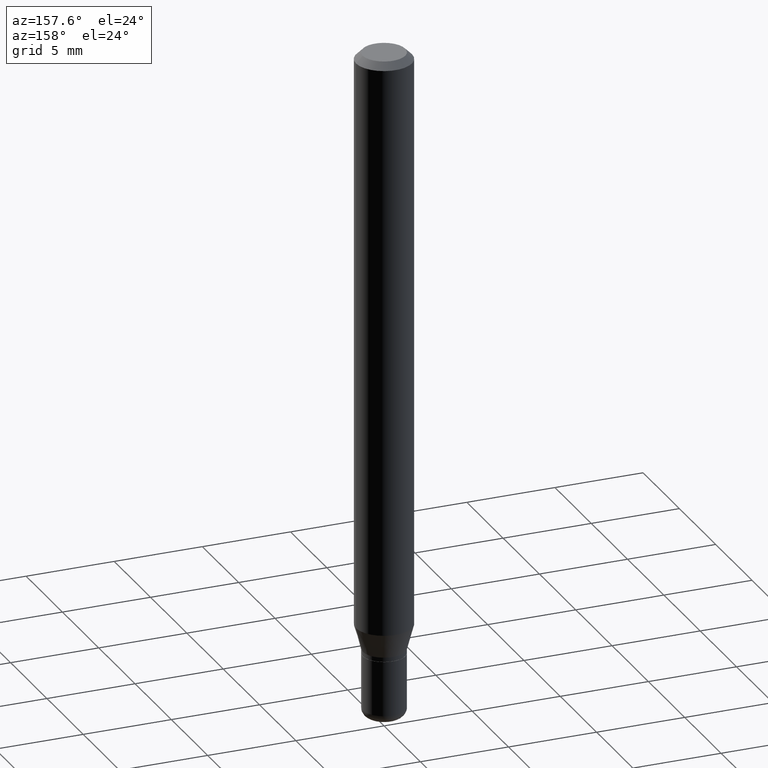
[diagram: clean part render]
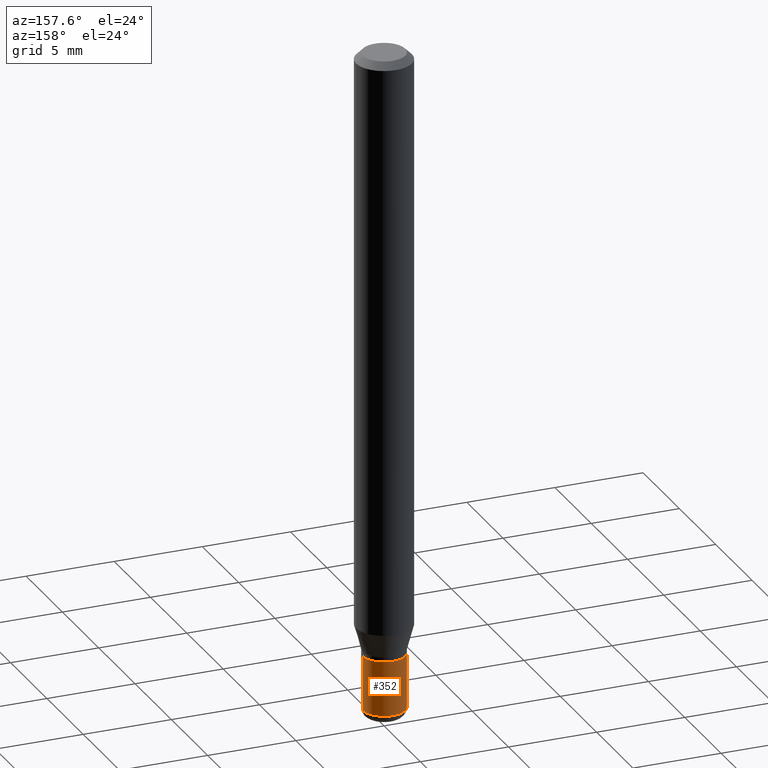
[diagram: same view with one face highlighted and labeled with its STEP entity id]
A machine part, auxiliary view. The second image highlights one B-rep face of the part: STEP entity #352.
In plain terms, the highlighted cylindrical surface (edge-blend (fillet) strip) has radius 1.2065 mm, axis along (-0, 0, 1).
Its self-contained STEP definition (entity closure, byte-faithful):
#44 = DIRECTION ( 'NONE',  ( -2.445468806185136877E-29, 3.491481338843145188E-15, 1.000000000000000000 ) ) ;
#53 = DIRECTION ( 'NONE',  ( -2.445468806185136877E-29, 3.491481338843145188E-15, 1.000000000000000000 ) ) ;
#67 = VERTEX_POINT ( 'NONE', #376 ) ;
#79 = DIRECTION ( 'NONE',  ( 1.000000000000000000, -6.982962677686266711E-15, 4.876176775795934672E-29 ) ) ;
#82 = CARTESIAN_POINT ( 'NONE',  ( 0.04749999999999999362, -5.071376644669668238E-15, -1.357500000000000151 ) ) ;
#94 = VERTEX_POINT ( 'NONE', #302 ) ;
#99 = DIRECTION ( 'NONE',  ( -2.445468806185136597E-29, 3.491481338843145583E-15, 1.000000000000000000 ) ) ;
#113 = LINE ( 'NONE', #228, #246 ) ;
#119 = CYLINDRICAL_SURFACE ( 'NONE', #182, 0.04750000000000000749 ) ;
#130 = EDGE_CURVE ( 'NONE', #366, #298, #408, .T. ) ;
#154 = AXIS2_PLACEMENT_3D ( 'NONE', #323, #404, #364 ) ;
#155 = DIRECTION ( 'NONE',  ( -2.445468806185136597E-29, 3.491481338843145583E-15, 1.000000000000000000 ) ) ;
#180 = CIRCLE ( 'NONE', #154, 0.04750000000000002137 ) ;
#182 = AXIS2_PLACEMENT_3D ( 'NONE', #350, #155, #79 ) ;
#200 = CIRCLE ( 'NONE', #335, 0.04749999999999999362 ) ;
#207 = DIRECTION ( 'NONE',  ( 1.000000000000000000, -6.982962677686261977E-15, 0.000000000000000000 ) ) ;
#227 = EDGE_CURVE ( 'NONE', #366, #94, #180, .T. ) ;
#228 = CARTESIAN_POINT ( 'NONE',  ( -0.04750000000000000749, 3.375077994860476415E-16, -2.336494167871080260E-30 ) ) ;
#246 = VECTOR ( 'NONE', #44, 39.37007874015748143 ) ;
#267 = ORIENTED_EDGE ( 'NONE', *, *, #227, .T. ) ;
#284 = CARTESIAN_POINT ( 'NONE',  ( 0.04750000000000000749, -3.316907271900977082E-16, 2.316183968503069432E-30 ) ) ;
#298 = VERTEX_POINT ( 'NONE', #82 ) ;
#302 = CARTESIAN_POINT ( 'NONE',  ( -0.04750000000000002137, -4.616031349997665704E-15, -1.479999999999999982 ) ) ;
#318 = ORIENTED_EDGE ( 'NONE', *, *, #130, .F. ) ;
#323 = CARTESIAN_POINT ( 'NONE',  ( 3.619293833154002365E-29, -5.167392381487854879E-15, -1.479999999999999982 ) ) ;
#332 = ORIENTED_EDGE ( 'NONE', *, *, #363, .T. ) ;
#335 = AXIS2_PLACEMENT_3D ( 'NONE', #451, #99, #207 ) ;
#350 = CARTESIAN_POINT ( 'NONE',  ( 0.000000000000000000, 0.000000000000000000, 0.000000000000000000 ) ) ;
#352 = ADVANCED_FACE ( 'NONE', ( #402 ), #119, .T. ) ;
#363 = EDGE_CURVE ( 'NONE', #94, #67, #113, .T. ) ;
#364 = DIRECTION ( 'NONE',  ( 1.000000000000000000, -6.982962677686258033E-15, 0.000000000000000000 ) ) ;
#366 = VERTEX_POINT ( 'NONE', #399 ) ;
#368 = VECTOR ( 'NONE', #53, 39.37007874015748143 ) ;
#375 = EDGE_LOOP ( 'NONE', ( #267, #332, #381, #318 ) ) ;
#376 = CARTESIAN_POINT ( 'NONE',  ( -0.04749999999999999362, -4.616031349997665704E-15, -1.357500000000000151 ) ) ;
#381 = ORIENTED_EDGE ( 'NONE', *, *, #472, .F. ) ;
#399 = CARTESIAN_POINT ( 'NONE',  ( 0.04750000000000002137, -5.499083108677952390E-15, -1.479999999999999982 ) ) ;
#402 = FACE_OUTER_BOUND ( 'NONE', #375, .T. ) ;
#404 = DIRECTION ( 'NONE',  ( -2.445468806185136597E-29, 3.491481338843145583E-15, 1.000000000000000000 ) ) ;
#408 = LINE ( 'NONE', #284, #368 ) ;
#451 = CARTESIAN_POINT ( 'NONE',  ( 3.319723904396323737E-29, -4.739685917479570727E-15, -1.357500000000000151 ) ) ;
#472 = EDGE_CURVE ( 'NONE', #298, #67, #200, .T. ) ;